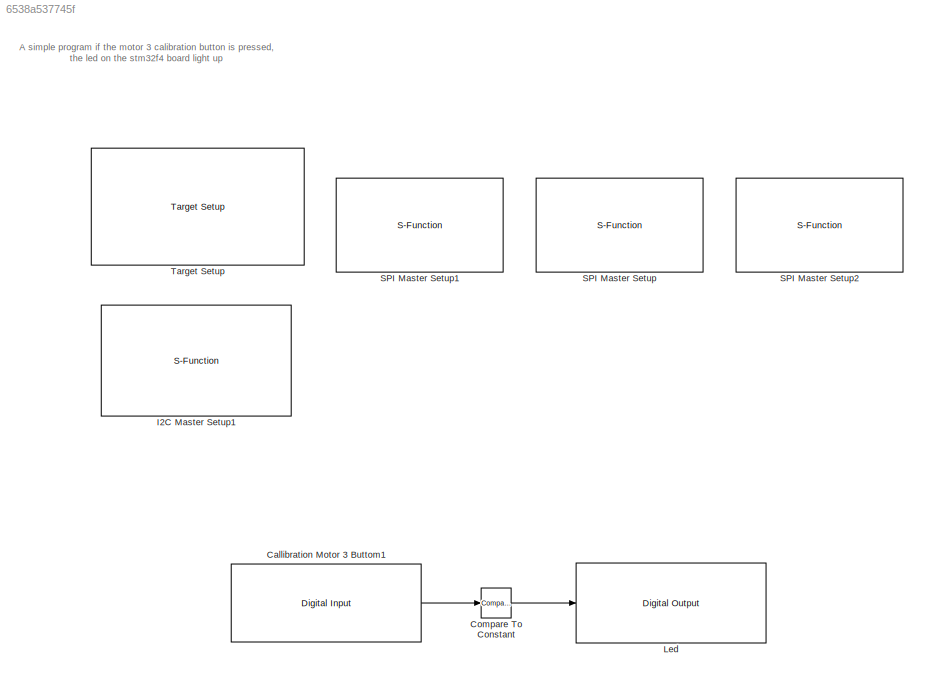
MODEL slx_6538a537745f
KIND model
CONFIG AbsTol = auto
CONFIG EnableMultiTasking = off
CONFIG FixedStep = auto
CONFIG MaxStep = auto
CONFIG MinStep = auto
CONFIG PreLoadFcn = waijung.modelPreload; % Required for working with Waijung Blockset. Do not remove.
CONFIG RelTol = 1e-3
CONFIG SampleTimeConstraint = Unconstrained
CONFIG Solver = FixedStepAuto
CONFIG SolverName = FixedStepAuto
CONFIG StartTime = 0.0
CONFIG StopTime = 10.0
BLOCK [Reference] Callibration Motor 3 Buttom1  REF=stm32f4_io_lib/Digital Input
  Ports = [0, 1]
  SourceBlock = stm32f4_io_lib/Digital Input
  SourceType = stm32f4_digital_input
BLOCK [Reference] Compare To Constant  REF=simulink/Logic and Bit
Operations/Compare
To Constant
  Ports = [1, 1]
  SourceBlock = simulink/Logic and Bit\nOperations/Compare\nTo Constant
  SourceType = Compare To Constant
BLOCK [S-Function] I2C Master Setup1
  EnableBusSupport = off
  FunctionName = stm32f4_i2c
  Parameters = configuration,module,transfer,clkspeed,timeout,sdapin,sclpin,writecount,readcount,inputtypearray,outputtypearray,confstr,sampletime,sampletimestr,blockid
  Ports = []
  SFcnIsStateOwnerBlock = off
  SFunctionDeploymentMode = off
BLOCK [Reference] Led  REF=stm32f4_io_lib/Digital Output
  Ports = [1]
  SourceBlock = stm32f4_io_lib/Digital Output
  SourceType = stm32f4_digital_output
BLOCK [S-Function] SPI Master Setup
  EnableBusSupport = off
  FunctionName = stm32f4_spimaster
  Parameters = mode,configuration,module,datacount,inputtypearray,outputtypearray,confstr,sampletime,sampletimestr,blockid
  Ports = []
  SFcnIsStateOwnerBlock = off
  SFunctionDeploymentMode = off
BLOCK [S-Function] SPI Master Setup1
  EnableBusSupport = off
  FunctionName = stm32f4_spimaster
  Parameters = mode,configuration,module,datacount,inputtypearray,outputtypearray,confstr,sampletime,sampletimestr,blockid
  Ports = []
  SFcnIsStateOwnerBlock = off
  SFunctionDeploymentMode = off
BLOCK [S-Function] SPI Master Setup2
  EnableBusSupport = off
  FunctionName = stm32f4_spimaster
  Parameters = mode,configuration,module,datacount,inputtypearray,outputtypearray,confstr,sampletime,sampletimestr,blockid
  Ports = []
  SFcnIsStateOwnerBlock = off
  SFunctionDeploymentMode = off
BLOCK [Reference] Target Setup  REF=stm32f4_device_config_lib/Target Setup
  Ports = []
  Priority = 100
  SourceBlock = stm32f4_device_config_lib/Target Setup
  SourceType = stm32f4_target_setup
ANNOTATION (root): A simple program if the motor 3 calibration button is pressed, the led on the stm32f4 board light up
LINE Callibration Motor 3 Buttom1:1 -> Compare To Constant:1
LINE Compare To Constant:1 -> Led:1
